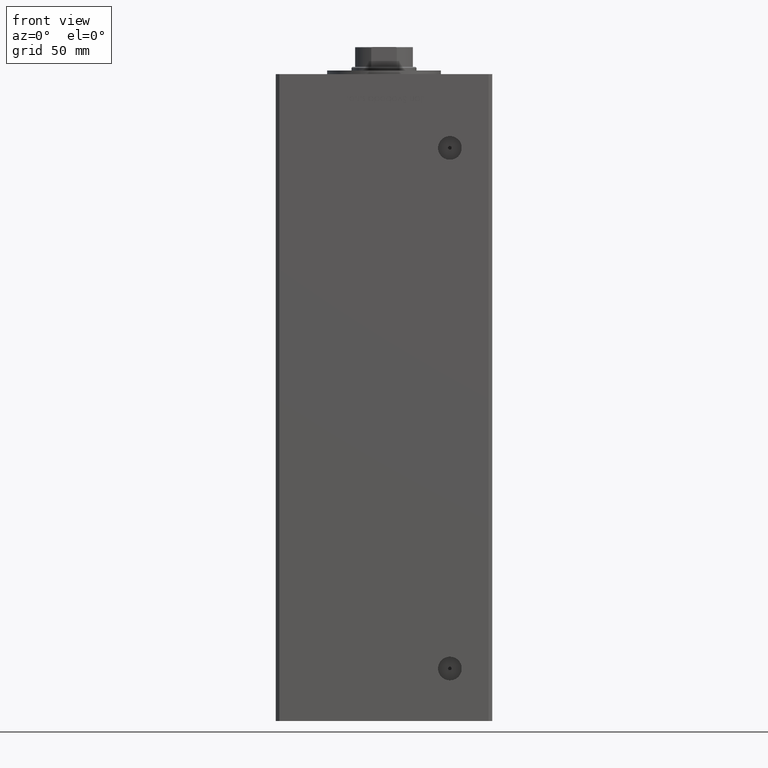
[diagram: clean part render]
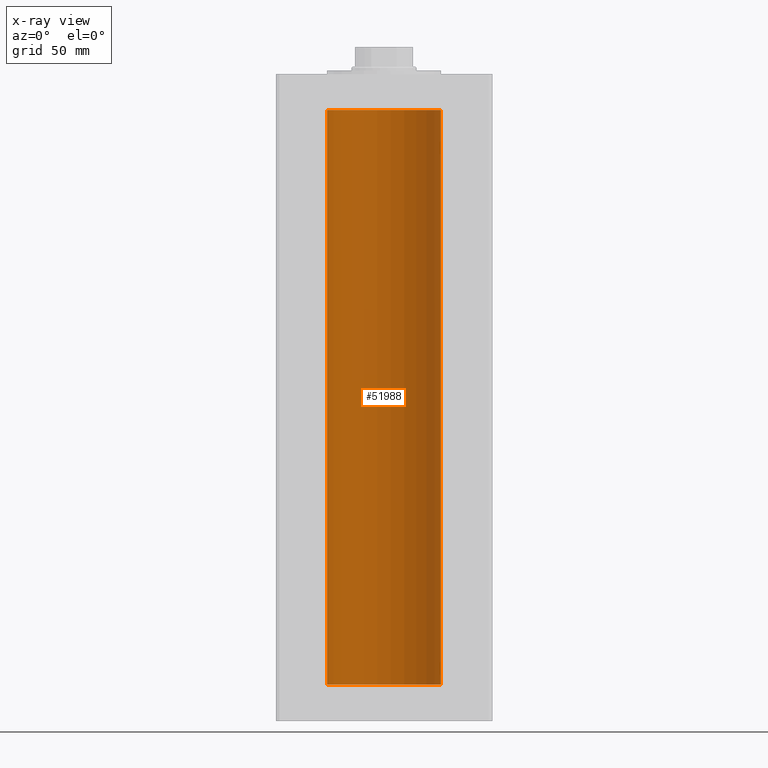
[diagram: x-ray — body ghosted, one internal face saturated and labeled with its STEP entity id]
A machine part, front view, then the same camera in x-ray: the body is ghosted and one INTERNAL B-rep face — a face not visible from any outside direction — is saturated and labeled: STEP entity #51988.
In plain terms, the highlighted cylindrical surface (partial cylindrical patch) has radius 31.5 mm, axis along (-0, -0, -1).
Its self-contained STEP definition (entity closure, byte-faithful):
#1167 = CYLINDRICAL_SURFACE ( 'NONE', #8670, 31.50000000000000000 ) ;
#2781 = CARTESIAN_POINT ( 'NONE',  ( -31.50000000000000000, 0.000000000000000000, 318.5000000000000000 ) ) ;
#2784 = VERTEX_POINT ( 'NONE', #14406 ) ;
#5922 = EDGE_CURVE ( 'NONE', #41968, #18741, #9413, .T. ) ;
#8103 = EDGE_CURVE ( 'NONE', #41968, #17928, #11576, .T. ) ;
#8670 = AXIS2_PLACEMENT_3D ( 'NONE', #49384, #22762, #43068 ) ;
#9413 = LINE ( 'NONE', #14154, #25900 ) ;
#9863 = AXIS2_PLACEMENT_3D ( 'NONE', #14750, #18959, #35297 ) ;
#10193 = DIRECTION ( 'NONE',  ( -0.000000000000000000, -0.000000000000000000, -1.000000000000000000 ) ) ;
#11576 = CIRCLE ( 'NONE', #9863, 31.50000000000000000 ) ;
#12155 = ORIENTED_EDGE ( 'NONE', *, *, #5922, .F. ) ;
#13552 = DIRECTION ( 'NONE',  ( -0.000000000000000000, 0.000000000000000000, 1.000000000000000000 ) ) ;
#13974 = ORIENTED_EDGE ( 'NONE', *, *, #8103, .T. ) ;
#14154 = CARTESIAN_POINT ( 'NONE',  ( 31.50000000000000000, 3.857637417314162689E-15, 318.5000000000000000 ) ) ;
#14406 = CARTESIAN_POINT ( 'NONE',  ( -31.50000000000000000, 0.000000000000000000, 0.000000000000000000 ) ) ;
#14750 = CARTESIAN_POINT ( 'NONE',  ( 0.000000000000000000, 0.000000000000000000, 318.5000000000000000 ) ) ;
#14890 = CARTESIAN_POINT ( 'NONE',  ( -31.50000000000000000, 0.000000000000000000, 318.5000000000000000 ) ) ;
#15741 = EDGE_CURVE ( 'NONE', #18741, #2784, #31133, .T. ) ;
#16729 = DIRECTION ( 'NONE',  ( 1.000000000000000000, 0.000000000000000000, 0.000000000000000000 ) ) ;
#17928 = VERTEX_POINT ( 'NONE', #14890 ) ;
#18216 = ORIENTED_EDGE ( 'NONE', *, *, #15741, .F. ) ;
#18741 = VERTEX_POINT ( 'NONE', #43367 ) ;
#18959 = DIRECTION ( 'NONE',  ( -0.000000000000000000, 0.000000000000000000, 1.000000000000000000 ) ) ;
#22762 = DIRECTION ( 'NONE',  ( -0.000000000000000000, -0.000000000000000000, -1.000000000000000000 ) ) ;
#25480 = CARTESIAN_POINT ( 'NONE',  ( 31.50000000000000000, 3.857637417314162689E-15, 318.5000000000000000 ) ) ;
#25900 = VECTOR ( 'NONE', #10193, 1000.000000000000000 ) ;
#28969 = VECTOR ( 'NONE', #51521, 1000.000000000000000 ) ;
#29475 = AXIS2_PLACEMENT_3D ( 'NONE', #37015, #13552, #16729 ) ;
#31133 = CIRCLE ( 'NONE', #29475, 31.50000000000000000 ) ;
#33465 = EDGE_LOOP ( 'NONE', ( #12155, #13974, #39986, #18216 ) ) ;
#34041 = EDGE_CURVE ( 'NONE', #17928, #2784, #47308, .T. ) ;
#35297 = DIRECTION ( 'NONE',  ( 1.000000000000000000, 0.000000000000000000, 0.000000000000000000 ) ) ;
#37015 = CARTESIAN_POINT ( 'NONE',  ( 0.000000000000000000, 0.000000000000000000, 0.000000000000000000 ) ) ;
#37282 = FACE_OUTER_BOUND ( 'NONE', #33465, .T. ) ;
#39986 = ORIENTED_EDGE ( 'NONE', *, *, #34041, .T. ) ;
#41968 = VERTEX_POINT ( 'NONE', #25480 ) ;
#43068 = DIRECTION ( 'NONE',  ( -1.000000000000000000, 0.000000000000000000, 0.000000000000000000 ) ) ;
#43367 = CARTESIAN_POINT ( 'NONE',  ( 31.50000000000000000, 3.857637417314162689E-15, 0.000000000000000000 ) ) ;
#47308 = LINE ( 'NONE', #2781, #28969 ) ;
#49384 = CARTESIAN_POINT ( 'NONE',  ( 0.000000000000000000, 0.000000000000000000, 318.5000000000000000 ) ) ;
#51521 = DIRECTION ( 'NONE',  ( -0.000000000000000000, -0.000000000000000000, -1.000000000000000000 ) ) ;
#51988 = ADVANCED_FACE ( 'NONE', ( #37282 ), #1167, .F. ) ;